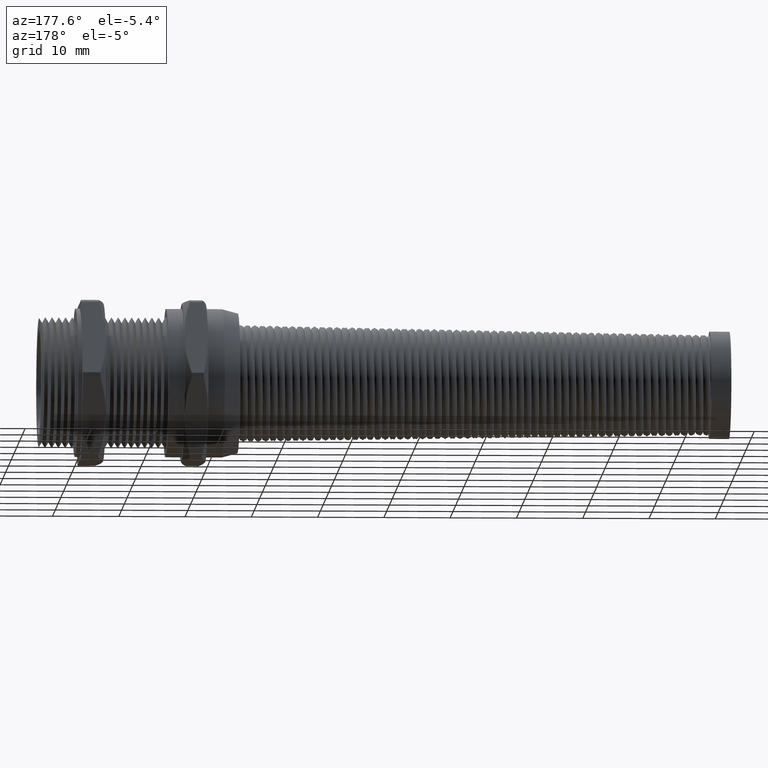
[diagram: clean part render]
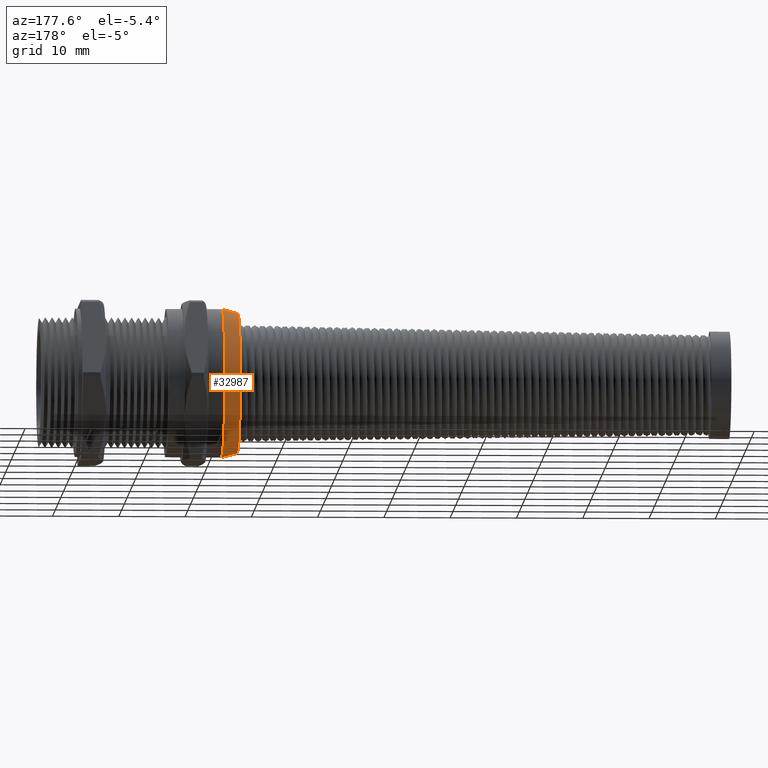
[diagram: same view with one face highlighted and labeled with its STEP entity id]
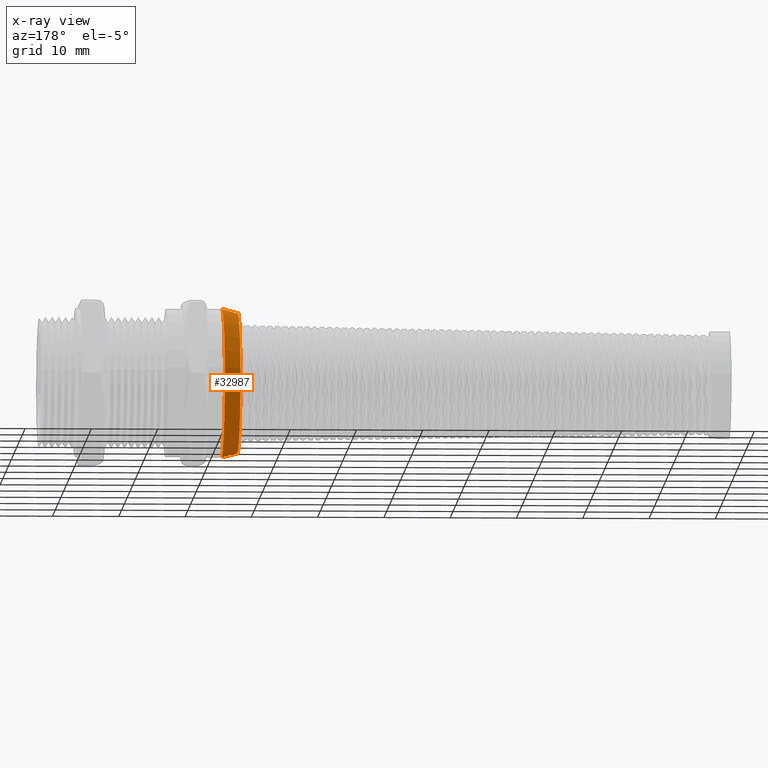
[diagram: x-ray of the same camera — body ghosted, the highlighted face saturated]
A machine part, auxiliary view. The second image highlights one B-rep face of the part: STEP entity #32987.
The next image is the same camera in x-ray: the body ghosted, the highlighted face saturated — about 0% of this face is hidden behind the body in this view.
In plain terms, the highlighted conical surface has half-angle 15 deg.
Its self-contained STEP definition (entity closure, byte-faithful):
#28289 = DIRECTION ( 'NONE',  ( 0.0000000000000000000, 0.0000000000000000000, -1.000000000000000000 ) ) ;
#28290 = DIRECTION ( 'NONE',  ( 1.000000000000000000, 0.0000000000000000000, 0.0000000000000000000 ) ) ;
#28292 = CARTESIAN_POINT ( 'NONE',  ( -0.4959999999999990500, 0.0000000000000000000, 0.0000000000000000000 ) ) ;
#28293 = AXIS2_PLACEMENT_3D ( 'NONE', #28292, #28290, #28289 ) ;
#28294 = CIRCLE ( 'NONE', #28293, 0.4420349999999999600 ) ;
#28295 = DIRECTION ( 'NONE',  ( 0.9659258262890689800, 0.0000000000000000000, -0.2588190451025183000 ) ) ;
#28296 = VECTOR ( 'NONE', #28295, 39.37007874015748100 ) ;
#28297 = CARTESIAN_POINT ( 'NONE',  ( -0.5899999999999999700, 0.0000000000000000000, -0.4168477759114744300 ) ) ;
#28303 = LINE ( 'NONE', #28297, #28296 ) ;
#28314 = CARTESIAN_POINT ( 'NONE',  ( -0.5899999999999999700, 0.0000000000000000000, -0.4168477759114744300 ) ) ;
#28315 = DIRECTION ( 'NONE',  ( 0.0000000000000000000, 0.0000000000000000000, -1.000000000000000000 ) ) ;
#28316 = DIRECTION ( 'NONE',  ( -1.000000000000000000, 0.0000000000000000000, 0.0000000000000000000 ) ) ;
#28317 = CARTESIAN_POINT ( 'NONE',  ( -0.5899999999999999700, 0.0000000000000000000, 0.0000000000000000000 ) ) ;
#28318 = AXIS2_PLACEMENT_3D ( 'NONE', #28317, #28316, #28315 ) ;
#28319 = CIRCLE ( 'NONE', #28318, 0.4168477759114744300 ) ;
#28324 = CARTESIAN_POINT ( 'NONE',  ( -0.4959999999999990500, 0.0000000000000000000, 0.4420349999999999600 ) ) ;
#28332 = DIRECTION ( 'NONE',  ( 0.9659258262890689800, 3.169619151431734700E-017, 0.2588190451025183000 ) ) ;
#28333 = VECTOR ( 'NONE', #28332, 39.37007874015748100 ) ;
#28334 = CARTESIAN_POINT ( 'NONE',  ( -0.5899999999999999700, 5.104912945016803600E-017, 0.4168477759114744300 ) ) ;
#28335 = LINE ( 'NONE', #28334, #28333 ) ;
#28342 = CARTESIAN_POINT ( 'NONE',  ( -0.4959999999999990500, 5.413367478611002500E-017, -0.4420349999999999600 ) ) ;
#28400 = DIRECTION ( 'NONE',  ( 0.0000000000000000000, 0.0000000000000000000, -1.000000000000000000 ) ) ;
#28401 = DIRECTION ( 'NONE',  ( 1.000000000000000000, 0.0000000000000000000, 0.0000000000000000000 ) ) ;
#28402 = CARTESIAN_POINT ( 'NONE',  ( -0.5899999999999999700, 0.0000000000000000000, 0.0000000000000000000 ) ) ;
#28403 = AXIS2_PLACEMENT_3D ( 'NONE', #28402, #28401, #28400 ) ;
#28404 = CONICAL_SURFACE ( 'NONE', #28403, 0.4168477759114744300, 0.2617993877991468000 ) ;
#28405 = FACE_OUTER_BOUND ( 'NONE', #32568, .T. ) ;
#28406 = CARTESIAN_POINT ( 'NONE',  ( -0.5899999999999999700, 5.259140211813903100E-017, 0.4168477759114744300 ) ) ;
#29449 = EDGE_CURVE ( 'NONE', #30779, #29779, #28303, .T. ) ;
#29486 = EDGE_CURVE ( 'NONE', #29779, #30590, #28294, .T. ) ;
#29624 = ORIENTED_EDGE ( 'NONE', *, *, #29449, .F. ) ;
#29717 = ORIENTED_EDGE ( 'NONE', *, *, #29486, .F. ) ;
#29779 = VERTEX_POINT ( 'NONE', #28342 ) ;
#30407 = ORIENTED_EDGE ( 'NONE', *, *, #30509, .T. ) ;
#30509 = EDGE_CURVE ( 'NONE', #32647, #30590, #28335, .T. ) ;
#30590 = VERTEX_POINT ( 'NONE', #28324 ) ;
#30674 = EDGE_CURVE ( 'NONE', #32647, #30779, #28319, .T. ) ;
#30779 = VERTEX_POINT ( 'NONE', #28314 ) ;
#32568 = EDGE_LOOP ( 'NONE', ( #32569, #30407, #29717, #29624 ) ) ;
#32569 = ORIENTED_EDGE ( 'NONE', *, *, #30674, .F. ) ;
#32647 = VERTEX_POINT ( 'NONE', #28406 ) ;
#32987 = ADVANCED_FACE ( 'NONE', ( #28405 ), #28404, .T. ) ;